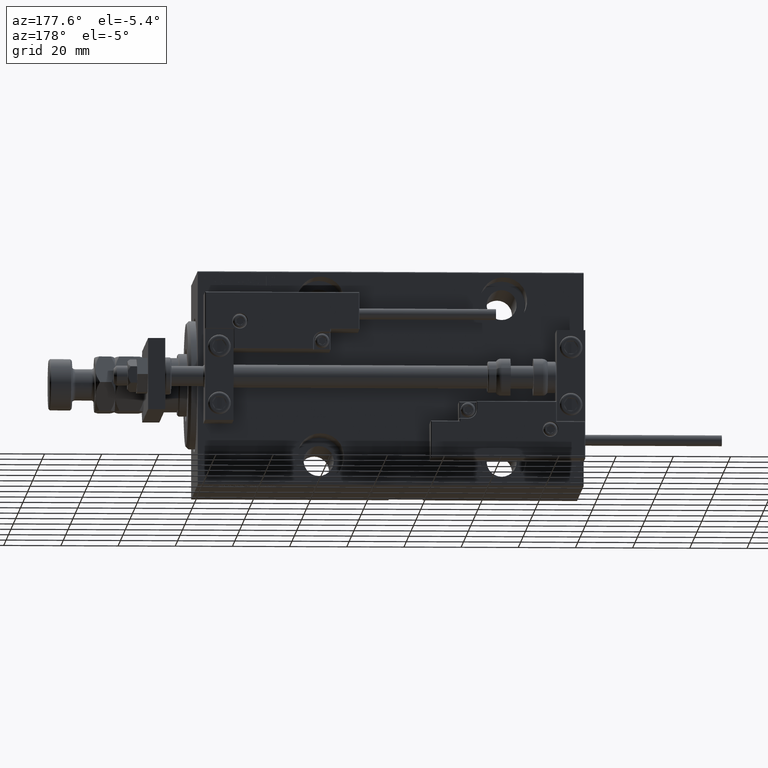
[diagram: clean part render]
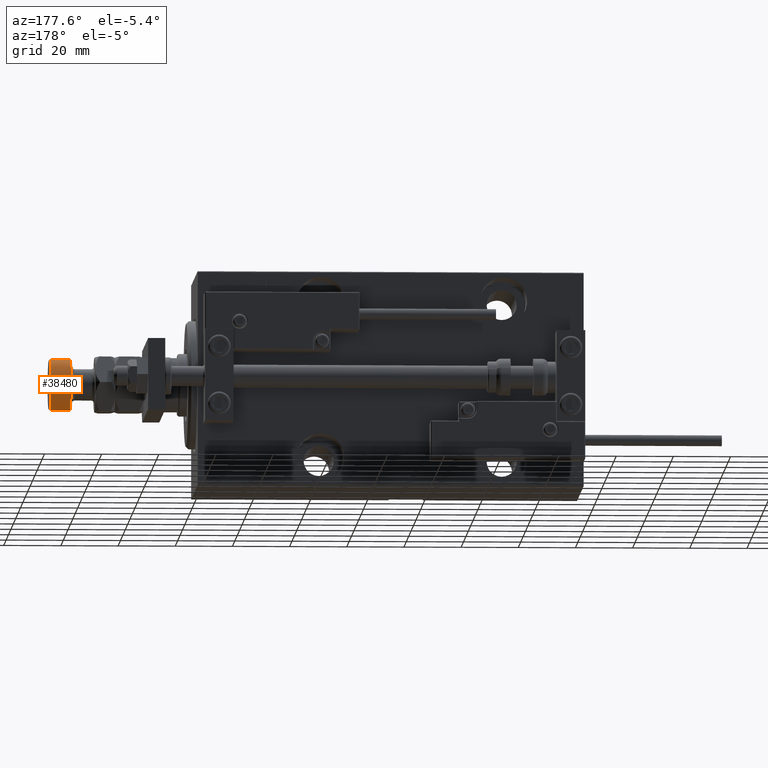
[diagram: same view with one face highlighted and labeled with its STEP entity id]
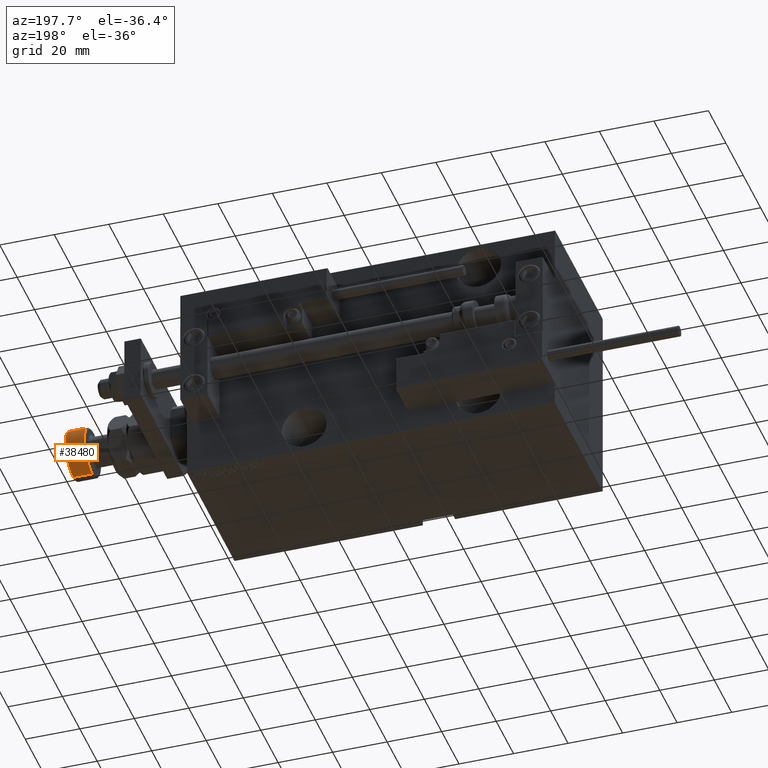
[diagram: same view with one face highlighted and labeled with its STEP entity id]
A machine part, auxiliary view. The second image highlights one B-rep face of the part: STEP entity #38480.
A second angle (auxiliary view) of the same face is appended — the face is thin or edge-on in the first view.
In plain terms, the highlighted cylindrical surface (edge-blend (fillet) strip) has radius 9 mm, axis along (-1, -0, 0).
Its self-contained STEP definition (entity closure, byte-faithful):
#1568 = CARTESIAN_POINT ( 'NONE',  ( -9.000000000000000000, 0.000000000000000000, 25.49999999999999289 ) ) ;
#1706 = CARTESIAN_POINT ( 'NONE',  ( 9.000000000000000000, 1.102182119232617714E-15, 25.49999999999999289 ) ) ;
#1863 = CIRCLE ( 'NONE', #42629, 9.000000000000000000 ) ;
#2124 = DIRECTION ( 'NONE',  ( -0.000000000000000000, -0.000000000000000000, -1.000000000000000000 ) ) ;
#3959 = ORIENTED_EDGE ( 'NONE', *, *, #38800, .T. ) ;
#4967 = ORIENTED_EDGE ( 'NONE', *, *, #10498, .T. ) ;
#6736 = CYLINDRICAL_SURFACE ( 'NONE', #7666, 9.000000000000000000 ) ;
#7666 = AXIS2_PLACEMENT_3D ( 'NONE', #22605, #25489, #41368 ) ;
#9638 = EDGE_LOOP ( 'NONE', ( #43654, #4967, #3959, #45087 ) ) ;
#10498 = EDGE_CURVE ( 'NONE', #14863, #12978, #43221, .T. ) ;
#10581 = DIRECTION ( 'NONE',  ( -0.000000000000000000, -0.000000000000000000, 1.000000000000000000 ) ) ;
#12978 = VERTEX_POINT ( 'NONE', #1706 ) ;
#14863 = VERTEX_POINT ( 'NONE', #28313 ) ;
#17350 = DIRECTION ( 'NONE',  ( 1.000000000000000000, 0.000000000000000000, 0.000000000000000000 ) ) ;
#17965 = CARTESIAN_POINT ( 'NONE',  ( -9.000000000000000000, 0.000000000000000000, 32.49999999999999289 ) ) ;
#18715 = VECTOR ( 'NONE', #23425, 1000.000000000000000 ) ;
#22134 = VERTEX_POINT ( 'NONE', #1568 ) ;
#22605 = CARTESIAN_POINT ( 'NONE',  ( 0.000000000000000000, 0.000000000000000000, 33.00000000000000000 ) ) ;
#23425 = DIRECTION ( 'NONE',  ( -0.000000000000000000, -0.000000000000000000, -1.000000000000000000 ) ) ;
#24856 = CIRCLE ( 'NONE', #33165, 9.000000000000000000 ) ;
#25451 = EDGE_CURVE ( 'NONE', #47966, #14863, #24856, .T. ) ;
#25489 = DIRECTION ( 'NONE',  ( -0.000000000000000000, -0.000000000000000000, -1.000000000000000000 ) ) ;
#25928 = CARTESIAN_POINT ( 'NONE',  ( 0.000000000000000000, 0.000000000000000000, 25.49999999999999289 ) ) ;
#27336 = CARTESIAN_POINT ( 'NONE',  ( 9.000000000000000000, 1.102182119232617714E-15, 33.00000000000000000 ) ) ;
#28313 = CARTESIAN_POINT ( 'NONE',  ( 9.000000000000000000, 1.102182119232617714E-15, 32.49999999999999289 ) ) ;
#28865 = VECTOR ( 'NONE', #2124, 1000.000000000000000 ) ;
#30665 = DIRECTION ( 'NONE',  ( 0.000000000000000000, 0.000000000000000000, -1.000000000000000000 ) ) ;
#33165 = AXIS2_PLACEMENT_3D ( 'NONE', #46802, #30665, #42377 ) ;
#38017 = LINE ( 'NONE', #49725, #28865 ) ;
#38480 = ADVANCED_FACE ( 'NONE', ( #42387 ), #6736, .T. ) ;
#38800 = EDGE_CURVE ( 'NONE', #12978, #22134, #1863, .T. ) ;
#40012 = EDGE_CURVE ( 'NONE', #47966, #22134, #38017, .T. ) ;
#41368 = DIRECTION ( 'NONE',  ( -1.000000000000000000, 0.000000000000000000, 0.000000000000000000 ) ) ;
#42377 = DIRECTION ( 'NONE',  ( 1.000000000000000000, 0.000000000000000000, 0.000000000000000000 ) ) ;
#42387 = FACE_OUTER_BOUND ( 'NONE', #9638, .T. ) ;
#42629 = AXIS2_PLACEMENT_3D ( 'NONE', #25928, #10581, #17350 ) ;
#43221 = LINE ( 'NONE', #27336, #18715 ) ;
#43654 = ORIENTED_EDGE ( 'NONE', *, *, #25451, .T. ) ;
#45087 = ORIENTED_EDGE ( 'NONE', *, *, #40012, .F. ) ;
#46802 = CARTESIAN_POINT ( 'NONE',  ( 0.000000000000000000, 0.000000000000000000, 32.49999999999999289 ) ) ;
#47966 = VERTEX_POINT ( 'NONE', #17965 ) ;
#49725 = CARTESIAN_POINT ( 'NONE',  ( -9.000000000000000000, 0.000000000000000000, 33.00000000000000000 ) ) ;